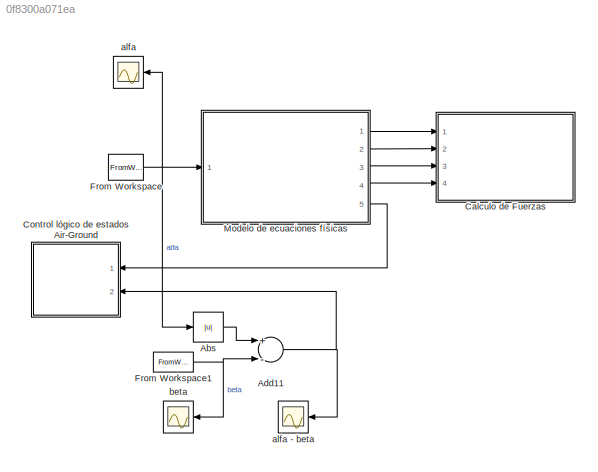
MODEL slx_0f8300a071ea
KIND model
CONFIG AbsTol = auto
CONFIG EnableMultiTasking = off
CONFIG FixedStep = auto
CONFIG MaxStep = auto
CONFIG MinStep = auto
CONFIG RelTol = 1e-1
CONFIG SampleTimeConstraint = Unconstrained
CONFIG Solver = VariableStepAuto
CONFIG SolverName = VariableStepAuto
CONFIG StartTime = 0.0
CONFIG StopTime = ta
BLOCK [Abs] Abs
  SaturateOnIntegerOverflow = off
BLOCK [Sum] Add11
  InputSameDT = off
  Inputs = +-
  OutDataTypeStr = Inherit: Inherit via internal rule
  Ports = [2, 1]
  SaturateOnIntegerOverflow = off
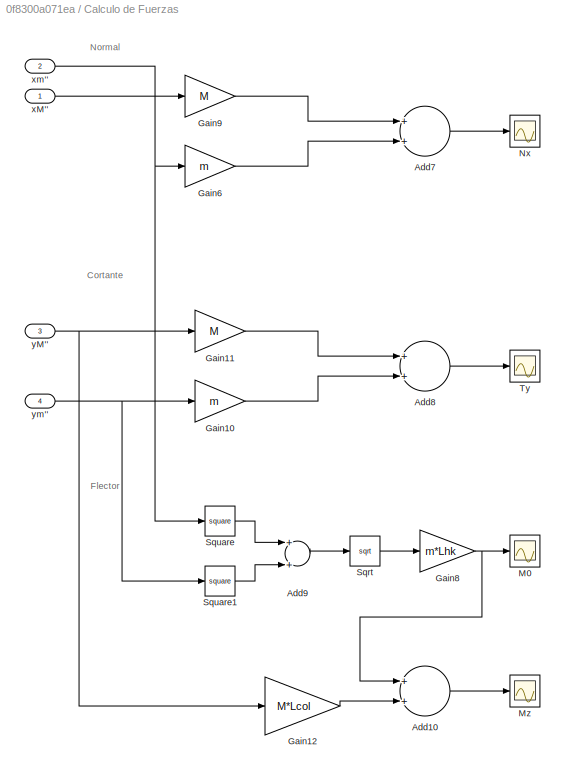
BLOCK [SubSystem] Calculo de Fuerzas
  Ports = [4]
  RequestExecContextInheritance = off
BLOCK [Sum] Calculo de Fuerzas/Add10
  InputSameDT = off
  OutDataTypeStr = Inherit: Inherit via internal rule
  Ports = [2, 1]
  SaturateOnIntegerOverflow = off
BLOCK [Sum] Calculo de Fuerzas/Add7
  InputSameDT = off
  OutDataTypeStr = Inherit: Inherit via internal rule
  Ports = [2, 1]
  SaturateOnIntegerOverflow = off
BLOCK [Sum] Calculo de Fuerzas/Add8
  InputSameDT = off
  OutDataTypeStr = Inherit: Inherit via internal rule
  Ports = [2, 1]
  SaturateOnIntegerOverflow = off
BLOCK [Sum] Calculo de Fuerzas/Add9
  InputSameDT = off
  OutDataTypeStr = Inherit: Inherit via internal rule
  Ports = [2, 1]
  SaturateOnIntegerOverflow = off
BLOCK [Gain] Calculo de Fuerzas/Gain10
  Gain = m
  OutDataTypeStr = Inherit: Inherit via internal rule
  ParamDataTypeStr = Inherit: Inherit via internal rule
  SaturateOnIntegerOverflow = off
BLOCK [Gain] Calculo de Fuerzas/Gain11
  Gain = M
  OutDataTypeStr = Inherit: Inherit via internal rule
  ParamDataTypeStr = Inherit: Inherit via internal rule
  SaturateOnIntegerOverflow = off
BLOCK [Gain] Calculo de Fuerzas/Gain12
  Gain = M*Lcol
  OutDataTypeStr = Inherit: Inherit via internal rule
  ParamDataTypeStr = Inherit: Inherit via internal rule
  SaturateOnIntegerOverflow = off
BLOCK [Gain] Calculo de Fuerzas/Gain6
  Gain = m
  OutDataTypeStr = Inherit: Inherit via internal rule
  ParamDataTypeStr = Inherit: Inherit via internal rule
  SaturateOnIntegerOverflow = off
BLOCK [Gain] Calculo de Fuerzas/Gain8
  Gain = m*Lhk
  OutDataTypeStr = Inherit: Inherit via internal rule
  ParamDataTypeStr = Inherit: Inherit via internal rule
  SaturateOnIntegerOverflow = off
BLOCK [Gain] Calculo de Fuerzas/Gain9
  Gain = M
  OutDataTypeStr = Inherit: Inherit via internal rule
  ParamDataTypeStr = Inherit: Inherit via internal rule
  SaturateOnIntegerOverflow = off
BLOCK [Scope] Calculo de Fuerzas/M0
  Floating = off
  NumInputPorts = 1
  Ports = [1]
  ScopeSpecificationString = Simulink.scopes.TimeScopeBlockCfg('CurrentConfiguration', extmgr.ConfigurationSet(extmgr.Configuration('Core','General UI',true),extmgr.Configuration('Core','Source UI',true),extmgr.Configuration('Sources','WiredSimulink',true,'DataLoggingVariableName','M0','DataLogging',true),extmgr.Configuration('Visuals','Time Domain',true,'SerializedDisplays',{struct('MinYLimReal','7.2404','MaxYLimReal','9.240...<+1456ch>
BLOCK [Scope] Calculo de Fuerzas/Mz
  Floating = off
  NumInputPorts = 1
  Ports = [1]
  ScopeSpecificationString = Simulink.scopes.TimeScopeBlockCfg('CurrentConfiguration', extmgr.ConfigurationSet(extmgr.Configuration('Core','General UI',true),extmgr.Configuration('Core','Source UI',true),extmgr.Configuration('Sources','WiredSimulink',true,'DataLoggingVariableName','Mz','DataLogging',true),extmgr.Configuration('Visuals','Time Domain',true,'SerializedDisplays',{struct('MinYLimReal','-104.7646','MaxYLimReal','-8...<+1475ch>
BLOCK [Scope] Calculo de Fuerzas/Nx
  Floating = off
  NumInputPorts = 1
  Ports = [1]
  ScopeSpecificationString = Simulink.scopes.TimeScopeBlockCfg('CurrentConfiguration', extmgr.ConfigurationSet(extmgr.Configuration('Core','General UI',true),extmgr.Configuration('Core','Source UI',true),extmgr.Configuration('Sources','WiredSimulink',true,'DataLoggingVariableName','Nx','DataLogging',true),extmgr.Configuration('Visuals','Time Domain',true,'SerializedDisplays',{struct('MinYLimReal','-2.0288','MaxYLimReal','2.87...<+1903ch>
BLOCK [Sqrt] Calculo de Fuerzas/Sqrt
BLOCK [Math] Calculo de Fuerzas/Square
  Operator = square
  Ports = [1, 1]
BLOCK [Math] Calculo de Fuerzas/Square1
  Operator = square
  Ports = [1, 1]
BLOCK [Scope] Calculo de Fuerzas/Ty
  Floating = off
  NumInputPorts = 1
  Ports = [1]
  ScopeSpecificationString = Simulink.scopes.TimeScopeBlockCfg('CurrentConfiguration', extmgr.ConfigurationSet(extmgr.Configuration('Core','General UI',true),extmgr.Configuration('Core','Source UI',true),extmgr.Configuration('Sources','WiredSimulink',true,'DataLoggingVariableName','Ty','DataLogging',true),extmgr.Configuration('Visuals','Time Domain',true,'SerializedDisplays',{struct('MinYLimReal','-2.0288','MaxYLimReal','2.87...<+1903ch>
BLOCK [Inport] Calculo de Fuerzas/xM''
  IconDisplay = Port number
BLOCK [Inport] Calculo de Fuerzas/xm''
  IconDisplay = Port number
  Port = 2
BLOCK [Inport] Calculo de Fuerzas/yM''
  IconDisplay = Port number
  Port = 3
BLOCK [Inport] Calculo de Fuerzas/ym''
  IconDisplay = Port number
  Port = 4
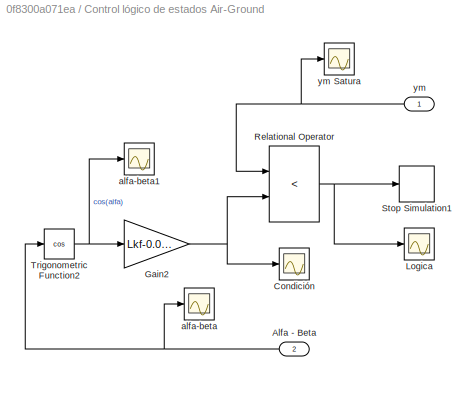
BLOCK [SubSystem] Control lógico de estados Air-Ground
  Ports = [2]
  RequestExecContextInheritance = off
BLOCK [Inport] Control lógico de estados Air-Ground/Alfa - Beta
  IconDisplay = Port number
  Port = 2
BLOCK [Scope] Control lógico de estados Air-Ground/Condición
  Floating = off
  NumInputPorts = 1
  Ports = [1]
  ScopeSpecificationString = Simulink.scopes.TimeScopeBlockCfg('CurrentConfiguration', extmgr.ConfigurationSet(extmgr.Configuration('Core','General UI',true),extmgr.Configuration('Core','Source UI',true),extmgr.Configuration('Sources','WiredSimulink',true,'DataLoggingVariableName','condicion','DataLogging',true),extmgr.Configuration('Visuals','Time Domain',true,'SerializedDisplays',{struct('MinYLimReal','-0.03235','MaxYLimRea...<+1477ch>
BLOCK [Gain] Control lógico de estados Air-Ground/Gain2
  Gain = Lkf-0.015
  OutDataTypeStr = Inherit: Inherit via internal rule
  ParamDataTypeStr = Inherit: Inherit via internal rule
  SaturateOnIntegerOverflow = off
BLOCK [Scope] Control lógico de estados Air-Ground/Logica
  Floating = off
  NumInputPorts = 1
  Ports = [1]
  ScopeSpecificationString = Simulink.scopes.TimeScopeBlockCfg('CurrentConfiguration', extmgr.ConfigurationSet(extmgr.Configuration('Core','General UI',true),extmgr.Configuration('Core','Source UI',true),extmgr.Configuration('Sources','WiredSimulink',true,'DataLoggingVariableName','ScopeData1','DataLoggingSaveFormat','Array'),extmgr.Configuration('Visuals','Time Domain',true,'SerializedDisplays',{struct('MinYLimReal','-0.125'...<+1425ch>
BLOCK [RelationalOperator] Control lógico de estados Air-Ground/Relational Operator
  InputSameDT = off
  Operator = <
  OutDataTypeStr = boolean
  Ports = [2, 1]
  RndMeth = Simplest
BLOCK [Stop] Control lógico de estados Air-Ground/Stop Simulation1
BLOCK [Trigonometry] Control lógico de estados Air-Ground/Trigonometric Function2
  Operator = cos
  Ports = [1, 1]
BLOCK [Scope] Control lógico de estados Air-Ground/alfa-beta
  Floating = off
  NumInputPorts = 1
  Ports = [1]
  ScopeSpecificationString = Simulink.scopes.TimeScopeBlockCfg('CurrentConfiguration', extmgr.ConfigurationSet(extmgr.Configuration('Core','General UI',true),extmgr.Configuration('Core','Source UI',true),extmgr.Configuration('Sources','WiredSimulink',true,'DataLoggingVariableName','ScopeData2','DataLoggingSaveFormat','Array'),extmgr.Configuration('Visuals','Time Domain',true,'SerializedDisplays',{struct('MinYLimReal','-1.6956...<+1500ch>
BLOCK [Scope] Control lógico de estados Air-Ground/alfa-beta1
  Floating = off
  NumInputPorts = 1
  Ports = [1]
  ScopeSpecificationString = Simulink.scopes.TimeScopeBlockCfg('CurrentConfiguration', extmgr.ConfigurationSet(extmgr.Configuration('Core','General UI',true),extmgr.Configuration('Core','Source UI',true),extmgr.Configuration('Sources','WiredSimulink',true,'DataLoggingVariableName','ScopeData4','DataLoggingSaveFormat','Array'),extmgr.Configuration('Visuals','Time Domain',true,'SerializedDisplays',{struct('MinYLimReal','-0.1159...<+1486ch>
BLOCK [Inport] Control lógico de estados Air-Ground/ym
  IconDisplay = Port number
BLOCK [Scope] Control lógico de estados Air-Ground/ym Satura
  Floating = off
  NumInputPorts = 1
  Ports = [1]
  ScopeSpecificationString = Simulink.scopes.TimeScopeBlockCfg('CurrentConfiguration', extmgr.ConfigurationSet(extmgr.Configuration('Core','General UI',true),extmgr.Configuration('Core','Source UI',true),extmgr.Configuration('Sources','WiredSimulink',true,'DataLoggingVariableName','ymSat','DataLogging',true),extmgr.Configuration('Visuals','Time Domain',true,'SerializedDisplays',{struct('MinYLimReal','-0.04274','MaxYLimReal','...<+1470ch>
BLOCK [FromWorkspace] From Workspace
  SampleTime = 0
  VariableName = alfaAir_t
  ZeroCross = on
BLOCK [FromWorkspace] From Workspace1
  SampleTime = 0
  VariableName = betaAir_t
  ZeroCross = on
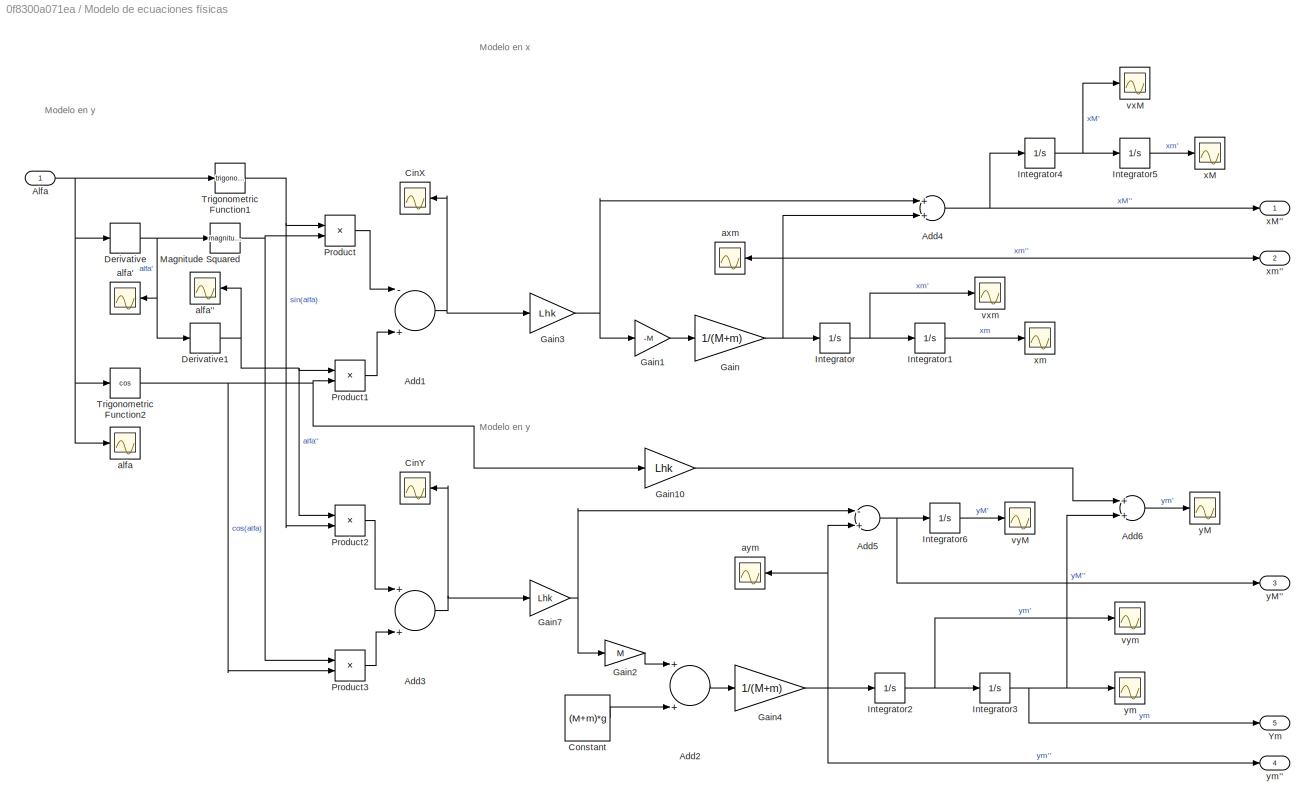
BLOCK [SubSystem] Modelo de ecuaciones físicas
  Ports = [1, 5]
  RequestExecContextInheritance = off
BLOCK [Sum] Modelo de ecuaciones físicas/Add1
  InputSameDT = off
  Inputs = -+
  OutDataTypeStr = Inherit: Inherit via internal rule
  Ports = [2, 1]
  SaturateOnIntegerOverflow = off
BLOCK [Sum] Modelo de ecuaciones físicas/Add2
  InputSameDT = off
  OutDataTypeStr = Inherit: Inherit via internal rule
  Ports = [2, 1]
  SaturateOnIntegerOverflow = off
BLOCK [Sum] Modelo de ecuaciones físicas/Add3
  InputSameDT = off
  OutDataTypeStr = Inherit: Inherit via internal rule
  Ports = [2, 1]
  SaturateOnIntegerOverflow = off
BLOCK [Sum] Modelo de ecuaciones físicas/Add4
  InputSameDT = off
  OutDataTypeStr = Inherit: Inherit via internal rule
  Ports = [2, 1]
  SaturateOnIntegerOverflow = off
BLOCK [Sum] Modelo de ecuaciones físicas/Add5
  InputSameDT = off
  Inputs = -+
  OutDataTypeStr = Inherit: Inherit via internal rule
  Ports = [2, 1]
  SaturateOnIntegerOverflow = off
BLOCK [Sum] Modelo de ecuaciones físicas/Add6
  InputSameDT = off
  OutDataTypeStr = Inherit: Inherit via internal rule
  Ports = [2, 1]
  SaturateOnIntegerOverflow = off
BLOCK [Inport] Modelo de ecuaciones físicas/Alfa
  IconDisplay = Port number
BLOCK [Scope] Modelo de ecuaciones físicas/CinX
  Floating = off
  NumInputPorts = 1
  Ports = [1]
  ScopeSpecificationString = Simulink.scopes.TimeScopeBlockCfg('CurrentConfiguration', extmgr.ConfigurationSet(extmgr.Configuration('Core','General UI',true),extmgr.Configuration('Core','Source UI',true),extmgr.Configuration('Sources','WiredSimulink',true,'DataLoggingVariableName','ScopeData5'),extmgr.Configuration('Visuals','Time Domain',true,'SerializedDisplays',{struct('MinYLimReal','-23602371756018.24609','MaxYLimReal','2...<+1463ch>
BLOCK [Scope] Modelo de ecuaciones físicas/CinY
  Floating = off
  NumInputPorts = 1
  Ports = [1]
  ScopeSpecificationString = Simulink.scopes.TimeScopeBlockCfg('CurrentConfiguration', extmgr.ConfigurationSet(extmgr.Configuration('Core','General UI',true),extmgr.Configuration('Core','Source UI',true),extmgr.Configuration('Sources','WiredSimulink',true,'DataLoggingVariableName','ScopeData4'),extmgr.Configuration('Visuals','Time Domain',true,'SerializedDisplays',{struct('MinYLimReal','-2102493.441','MaxYLimReal','233709.274...<+1399ch>
BLOCK [Constant] Modelo de ecuaciones físicas/Constant
  Value = (M+m)*g
BLOCK [Derivative] Modelo de ecuaciones físicas/Derivative
  CoefficientInTFapproximation = 1000
BLOCK [Derivative] Modelo de ecuaciones físicas/Derivative1
  CoefficientInTFapproximation = 1000
BLOCK [Gain] Modelo de ecuaciones físicas/Gain
  Gain = 1/(M+m)
  OutDataTypeStr = Inherit: Inherit via internal rule
  ParamDataTypeStr = Inherit: Inherit via internal rule
  SaturateOnIntegerOverflow = off
BLOCK [Gain] Modelo de ecuaciones físicas/Gain1
  Gain = -M
  OutDataTypeStr = Inherit: Inherit via internal rule
  ParamDataTypeStr = Inherit: Inherit via internal rule
  SaturateOnIntegerOverflow = off
BLOCK [Gain] Modelo de ecuaciones físicas/Gain10
  Gain = Lhk
  OutDataTypeStr = Inherit: Inherit via internal rule
  ParamDataTypeStr = Inherit: Inherit via internal rule
  SaturateOnIntegerOverflow = off
BLOCK [Gain] Modelo de ecuaciones físicas/Gain2
  Gain = M
  OutDataTypeStr = Inherit: Inherit via internal rule
  ParamDataTypeStr = Inherit: Inherit via internal rule
  SaturateOnIntegerOverflow = off
BLOCK [Gain] Modelo de ecuaciones físicas/Gain3
  Gain = Lhk
  OutDataTypeStr = Inherit: Inherit via internal rule
  ParamDataTypeStr = Inherit: Inherit via internal rule
  SaturateOnIntegerOverflow = off
BLOCK [Gain] Modelo de ecuaciones físicas/Gain4
  Gain = 1/(M+m)
  OutDataTypeStr = Inherit: Inherit via internal rule
  ParamDataTypeStr = Inherit: Inherit via internal rule
  SaturateOnIntegerOverflow = off
BLOCK [Gain] Modelo de ecuaciones físicas/Gain7
  Gain = Lhk
  OutDataTypeStr = Inherit: Inherit via internal rule
  ParamDataTypeStr = Inherit: Inherit via internal rule
  SaturateOnIntegerOverflow = off
BLOCK [Integrator] Modelo de ecuaciones físicas/Integrator
  InitialCondition = vxfinal
  Ports = [1, 1]
BLOCK [Integrator] Modelo de ecuaciones físicas/Integrator1
  InitialCondition = xfinal
  Ports = [1, 1]
BLOCK [Integrator] Modelo de ecuaciones físicas/Integrator2
  InitialCondition = vyfinal
  Ports = [1, 1]
BLOCK [Integrator] Modelo de ecuaciones físicas/Integrator3
  InitialCondition = yfinal
  Ports = [1, 1]
BLOCK [Integrator] Modelo de ecuaciones físicas/Integrator4
  InitialCondition = vxMfinal
  Ports = [1, 1]
BLOCK [Integrator] Modelo de ecuaciones físicas/Integrator5
  InitialCondition = xMfinal
  Ports = [1, 1]
BLOCK [Integrator] Modelo de ecuaciones físicas/Integrator6
  InitialCondition = vyMfinal
  Ports = [1, 1]
BLOCK [Math] Modelo de ecuaciones físicas/Magnitude Squared
  Operator = magnitude^2
  Ports = [1, 1]
BLOCK [Product] Modelo de ecuaciones físicas/Product
  InputSameDT = off
  OutDataTypeStr = Inherit: Inherit via internal rule
  Ports = [2, 1]
  RndMeth = Floor
  SaturateOnIntegerOverflow = off
BLOCK [Product] Modelo de ecuaciones físicas/Product1
  InputSameDT = off
  OutDataTypeStr = Inherit: Inherit via internal rule
  Ports = [2, 1]
  RndMeth = Floor
  SaturateOnIntegerOverflow = off
BLOCK [Product] Modelo de ecuaciones físicas/Product2
  InputSameDT = off
  OutDataTypeStr = Inherit: Inherit via internal rule
  Ports = [2, 1]
  RndMeth = Floor
  SaturateOnIntegerOverflow = off
BLOCK [Product] Modelo de ecuaciones físicas/Product3
  InputSameDT = off
  OutDataTypeStr = Inherit: Inherit via internal rule
  Ports = [2, 1]
  RndMeth = Floor
  SaturateOnIntegerOverflow = off
BLOCK [Trigonometry] Modelo de ecuaciones físicas/Trigonometric Function1
  Ports = [1, 1]
BLOCK [Trigonometry] Modelo de ecuaciones físicas/Trigonometric Function2
  Operator = cos
  Ports = [1, 1]
BLOCK [Outport] Modelo de ecuaciones físicas/Ym
  IconDisplay = Port number
  Port = 5
BLOCK [Scope] Modelo de ecuaciones físicas/alfa
  Floating = off
  NumInputPorts = 1
  Ports = [1]
  ScopeSpecificationString = Simulink.scopes.TimeScopeBlockCfg('CurrentConfiguration', extmgr.ConfigurationSet(extmgr.Configuration('Core','General UI',true),extmgr.Configuration('Core','Source UI',true),extmgr.Configuration('Sources','WiredSimulink',true,'DataLoggingVariableName','ScopeData1'),extmgr.Configuration('Visuals','Time Domain',true,'SerializedDisplays',{struct('MinYLimReal','-1.18796','MaxYLimReal','1.56879','YLab...<+2085ch>
BLOCK [Scope] Modelo de ecuaciones físicas/alfa'
  Floating = off
  NumInputPorts = 1
  Ports = [1]
  ScopeSpecificationString = Simulink.scopes.TimeScopeBlockCfg('CurrentConfiguration', extmgr.ConfigurationSet(extmgr.Configuration('Core','General UI',true),extmgr.Configuration('Core','Source UI',true),extmgr.Configuration('Sources','WiredSimulink',true,'DataLoggingVariableName','ScopeData2'),extmgr.Configuration('Visuals','Time Domain',true,'SerializedDisplays',{struct('MinYLimReal','-15.13267','MaxYLimReal','13.2348','YLa...<+1396ch>
BLOCK [Scope] Modelo de ecuaciones físicas/alfa''
  Floating = off
  NumInputPorts = 1
  Ports = [1]
  ScopeSpecificationString = Simulink.scopes.TimeScopeBlockCfg('CurrentConfiguration', extmgr.ConfigurationSet(extmgr.Configuration('Core','General UI',true),extmgr.Configuration('Core','Source UI',true),extmgr.Configuration('Sources','WiredSimulink',true,'DataLoggingVariableName','ScopeData3'),extmgr.Configuration('Visuals','Time Domain',true,'SerializedDisplays',{struct('MinYLimReal','-24504794364044415216146234474496.00000...<+1632ch>
BLOCK [Scope] Modelo de ecuaciones físicas/axm
  Floating = off
  NumInputPorts = 1
  Ports = [1]
  ScopeSpecificationString = Simulink.scopes.TimeScopeBlockCfg('CurrentConfiguration', extmgr.ConfigurationSet(extmgr.Configuration('Core','General UI',true),extmgr.Configuration('Core','Source UI',true),extmgr.Configuration('Sources','WiredSimulink',true,'DataLoggingVariableName','ScopeData1'),extmgr.Configuration('Visuals','Time Domain',true,'SerializedDisplays',{struct('MinYLimReal','-1.00000','MaxYLimReal','1.00000','YLab...<+2200ch>
BLOCK [Scope] Modelo de ecuaciones físicas/aym
  Floating = off
  NumInputPorts = 1
  Ports = [1]
  ScopeSpecificationString = Simulink.scopes.TimeScopeBlockCfg('CurrentConfiguration', extmgr.ConfigurationSet(extmgr.Configuration('Core','General UI',true),extmgr.Configuration('Core','Source UI',true),extmgr.Configuration('Sources','WiredSimulink',true,'DataLoggingVariableName','ScopeData1'),extmgr.Configuration('Visuals','Time Domain',true,'SerializedDisplays',{struct('MinYLimReal','-10.81','MaxYLimReal','-8.81','YLabelRe...<+2188ch>
BLOCK [Scope] Modelo de ecuaciones físicas/vxM
  Floating = off
  NumInputPorts = 1
  Ports = [1]
  ScopeSpecificationString = Simulink.scopes.TimeScopeBlockCfg('CurrentConfiguration', extmgr.ConfigurationSet(extmgr.Configuration('Core','General UI',true),extmgr.Configuration('Core','Source UI',true),extmgr.Configuration('Sources','WiredSimulink',true,'DataLogging',true,'DataLoggingVariableName','vxMair'),extmgr.Configuration('Visuals','Time Domain',true,'SerializedDisplays',{struct('MinYLimReal','-5.64476','MaxYLimReal',...<+1380ch>
BLOCK [Scope] Modelo de ecuaciones físicas/vxm
  Floating = off
  NumInputPorts = 1
  Ports = [1]
  ScopeSpecificationString = Simulink.scopes.TimeScopeBlockCfg('CurrentConfiguration', extmgr.ConfigurationSet(extmgr.Configuration('Core','General UI',true),extmgr.Configuration('Core','Source UI',true),extmgr.Configuration('Sources','WiredSimulink',true,'DataLoggingVariableName','vxair','DataLogging',true),extmgr.Configuration('Visuals','Time Domain',true,'SerializedDisplays',{struct('MinYLimReal','1.43776','MaxYLimReal','7...<+1375ch>
BLOCK [Scope] Modelo de ecuaciones físicas/vyM
  Floating = off
  NumInputPorts = 1
  Ports = [1]
  ScopeSpecificationString = Simulink.scopes.TimeScopeBlockCfg('CurrentConfiguration', extmgr.ConfigurationSet(extmgr.Configuration('Core','General UI',true),extmgr.Configuration('Core','Source UI',true),extmgr.Configuration('Sources','WiredSimulink',true,'DataLogging',true,'DataLoggingVariableName','vyMair'),extmgr.Configuration('Visuals','Time Domain',true,'SerializedDisplays',{struct('MinYLimReal','-1.00000','MaxYLimReal',...<+1374ch>
BLOCK [Scope] Modelo de ecuaciones físicas/vym
  Floating = off
  NumInputPorts = 1
  Ports = [1]
  ScopeSpecificationString = Simulink.scopes.TimeScopeBlockCfg('CurrentConfiguration', extmgr.ConfigurationSet(extmgr.Configuration('Core','General UI',true),extmgr.Configuration('Core','Source UI',true),extmgr.Configuration('Sources','WiredSimulink',true,'DataLoggingVariableName','vyair','DataLogging',true),extmgr.Configuration('Visuals','Time Domain',true,'SerializedDisplays',{struct('MinYLimReal','-2.0288','MaxYLimReal','2...<+1421ch>
BLOCK [Scope] Modelo de ecuaciones físicas/xM
  Floating = off
  NumInputPorts = 1
  Ports = [1]
  ScopeSpecificationString = Simulink.scopes.TimeScopeBlockCfg('CurrentConfiguration', extmgr.ConfigurationSet(extmgr.Configuration('Core','General UI',true),extmgr.Configuration('Core','Source UI',true),extmgr.Configuration('Sources','WiredSimulink',true,'DataLogging',true,'DataLoggingVariableName','xMair'),extmgr.Configuration('Visuals','Time Domain',true,'SerializedDisplays',{struct('MinYLimReal','-1.00000','MaxYLimReal','...<+1373ch>
BLOCK [Outport] Modelo de ecuaciones físicas/xM''
  IconDisplay = Port number
BLOCK [Scope] Modelo de ecuaciones físicas/xm
  Floating = off
  NumInputPorts = 1
  Ports = [1]
  ScopeSpecificationString = Simulink.scopes.TimeScopeBlockCfg('CurrentConfiguration', extmgr.ConfigurationSet(extmgr.Configuration('Core','General UI',true),extmgr.Configuration('Core','Source UI',true),extmgr.Configuration('Sources','WiredSimulink',true,'DataLogging',true,'DataLoggingVariableName','xair'),extmgr.Configuration('Visuals','Time Domain',true,'SerializedDisplays',{struct('MinYLimReal','-1.00000','MaxYLimReal','1...<+1372ch>
BLOCK [Outport] Modelo de ecuaciones físicas/xm''
  IconDisplay = Port number
  Port = 2
BLOCK [Scope] Modelo de ecuaciones físicas/yM
  Floating = off
  NumInputPorts = 1
  Ports = [1]
  ScopeSpecificationString = Simulink.scopes.TimeScopeBlockCfg('CurrentConfiguration', extmgr.ConfigurationSet(extmgr.Configuration('Core','General UI',true),extmgr.Configuration('Core','Source UI',true),extmgr.Configuration('Sources','WiredSimulink',true,'DataLogging',true,'DataLoggingVariableName','yMair'),extmgr.Configuration('Visuals','Time Domain',true,'SerializedDisplays',{struct('MinYLimReal','0.73865','MaxYLimReal','0...<+2100ch>
BLOCK [Outport] Modelo de ecuaciones físicas/yM''
  IconDisplay = Port number
  Port = 3
BLOCK [Scope] Modelo de ecuaciones físicas/ym
  Floating = off
  NumInputPorts = 1
  Ports = [1]
  ScopeSpecificationString = Simulink.scopes.TimeScopeBlockCfg('CurrentConfiguration', extmgr.ConfigurationSet(extmgr.Configuration('Core','General UI',true),extmgr.Configuration('Core','Source UI',true),extmgr.Configuration('Sources','WiredSimulink',true,'DataLogging',true,'DataLoggingVariableName','yair'),extmgr.Configuration('Visuals','Time Domain',true,'SerializedDisplays',{struct('MinYLimReal','0.13543','MaxYLimReal','0....<+1786ch>
BLOCK [Outport] Modelo de ecuaciones físicas/ym''
  IconDisplay = Port number
  Port = 4
BLOCK [Scope] alfa
  Floating = off
  NumInputPorts = 1
  Ports = [1]
  ScopeSpecificationString = Simulink.scopes.TimeScopeBlockCfg('CurrentConfiguration', extmgr.ConfigurationSet(extmgr.Configuration('Core','General UI',true),extmgr.Configuration('Core','Source UI',true),extmgr.Configuration('Sources','WiredSimulink',true,'DataLoggingVariableName','alfaAirReal','DataLogging',true),extmgr.Configuration('Visuals','Time Domain',true,'SerializedDisplays',{struct('MinYLimReal','-0.74451','MaxYLimR...<+1410ch>
BLOCK [Scope] alfa - beta
  Floating = off
  NumInputPorts = 1
  Ports = [1]
  ScopeSpecificationString = Simulink.scopes.TimeScopeBlockCfg('CurrentConfiguration', extmgr.ConfigurationSet(extmgr.Configuration('Core','General UI',true),extmgr.Configuration('Core','Source UI',true),extmgr.Configuration('Sources','WiredSimulink',true,'DataLoggingVariableName','ScopeData2'),extmgr.Configuration('Visuals','Time Domain',true,'SerializedDisplays',{struct('MinYLimReal','0.37825','MaxYLimReal','0.57825','YLabe...<+1387ch>
BLOCK [Scope] beta
  Floating = off
  NumInputPorts = 1
  Ports = [1]
  ScopeSpecificationString = Simulink.scopes.TimeScopeBlockCfg('CurrentConfiguration', extmgr.ConfigurationSet(extmgr.Configuration('Core','General UI',true),extmgr.Configuration('Core','Source UI',true),extmgr.Configuration('Sources','WiredSimulink',true,'DataLoggingVariableName','betaAirReal','DataLogging',true),extmgr.Configuration('Visuals','Time Domain',true,'SerializedDisplays',{struct('MinYLimReal','0.06626','MaxYLimRe...<+1381ch>
ANNOTATION Calculo de Fuerzas: Cortante
ANNOTATION Calculo de Fuerzas: Flector
ANNOTATION Calculo de Fuerzas: Normal
ANNOTATION Modelo de ecuaciones físicas: Modelo en x
ANNOTATION Modelo de ecuaciones físicas: Modelo en y
LINE Abs:1 -> Add11:1
NET Add11:1 -> Control lógico de estados Air-Ground:2, alfa - beta:1
LINE Calculo de Fuerzas/Add10:1 -> Calculo de Fuerzas/Mz:1
LINE Calculo de Fuerzas/Add7:1 -> Calculo de Fuerzas/Nx:1
LINE Calculo de Fuerzas/Add8:1 -> Calculo de Fuerzas/Ty:1
LINE Calculo de Fuerzas/Add9:1 -> Calculo de Fuerzas/Sqrt:1
LINE Calculo de Fuerzas/Gain10:1 -> Calculo de Fuerzas/Add8:2
LINE Calculo de Fuerzas/Gain11:1 -> Calculo de Fuerzas/Add8:1
LINE Calculo de Fuerzas/Gain12:1 -> Calculo de Fuerzas/Add10:2
LINE Calculo de Fuerzas/Gain6:1 -> Calculo de Fuerzas/Add7:2
NET Calculo de Fuerzas/Gain8:1 -> Calculo de Fuerzas/Add10:1, Calculo de Fuerzas/M0:1
LINE Calculo de Fuerzas/Gain9:1 -> Calculo de Fuerzas/Add7:1
LINE Calculo de Fuerzas/Sqrt:1 -> Calculo de Fuerzas/Gain8:1
LINE Calculo de Fuerzas/Square1:1 -> Calculo de Fuerzas/Add9:2
LINE Calculo de Fuerzas/Square:1 -> Calculo de Fuerzas/Add9:1
LINE Calculo de Fuerzas/xM'':1 -> Calculo de Fuerzas/Gain9:1
NET Calculo de Fuerzas/xm'':1 -> Calculo de Fuerzas/Gain6:1, Calculo de Fuerzas/Square:1
NET Calculo de Fuerzas/yM'':1 -> Calculo de Fuerzas/Gain11:1, Calculo de Fuerzas/Gain12:1
NET Calculo de Fuerzas/ym'':1 -> Calculo de Fuerzas/Gain10:1, Calculo de Fuerzas/Square1:1
NET Control lógico de estados Air-Ground/Alfa - Beta:1 -> Control lógico de estados Air-Ground/Trigonometric Function2:1, Control lógico de estados Air-Ground/alfa-beta:1
NET Control lógico de estados Air-Ground/Gain2:1 -> Control lógico de estados Air-Ground/Condición:1, Control lógico de estados Air-Ground/Relational Operator:2
NET Control lógico de estados Air-Ground/Relational Operator:1 -> Control lógico de estados Air-Ground/Logica:1, Control lógico de estados Air-Ground/Stop Simulation1:1
NET Control lógico de estados Air-Ground/Trigonometric Function2:1 -> Control lógico de estados Air-Ground/Gain2:1, Control lógico de estados Air-Ground/alfa-beta1:1
NET Control lógico de estados Air-Ground/ym:1 -> Control lógico de estados Air-Ground/Relational Operator:1, Control lógico de estados Air-Ground/ym Satura:1
NET From Workspace1:1 -> Add11:2, beta:1
NET From Workspace:1 -> Abs:1, Modelo de ecuaciones físicas:1, alfa:1
NET Modelo de ecuaciones físicas/Add1:1 -> Modelo de ecuaciones físicas/CinX:1, Modelo de ecuaciones físicas/Gain3:1
LINE Modelo de ecuaciones físicas/Add2:1 -> Modelo de ecuaciones físicas/Gain4:1
NET Modelo de ecuaciones físicas/Add3:1 -> Modelo de ecuaciones físicas/CinY:1, Modelo de ecuaciones físicas/Gain7:1
NET Modelo de ecuaciones físicas/Add4:1 -> Modelo de ecuaciones físicas/Integrator4:1, Modelo de ecuaciones físicas/xM'':1
NET Modelo de ecuaciones físicas/Add5:1 -> Modelo de ecuaciones físicas/Integrator6:1, Modelo de ecuaciones físicas/yM'':1
LINE Modelo de ecuaciones físicas/Add6:1 -> Modelo de ecuaciones físicas/yM:1
NET Modelo de ecuaciones físicas/Alfa:1 -> Modelo de ecuaciones físicas/Derivative:1, Modelo de ecuaciones físicas/Trigonometric Function1:1, Modelo de ecuaciones físicas/Trigonometric Function2:1, Modelo de ecuaciones físicas/alfa:1
LINE Modelo de ecuaciones físicas/Constant:1 -> Modelo de ecuaciones físicas/Add2:2
NET Modelo de ecuaciones físicas/Derivative1:1 -> Modelo de ecuaciones físicas/Product1:1, Modelo de ecuaciones físicas/Product2:1, Modelo de ecuaciones físicas/alfa'':1
NET Modelo de ecuaciones físicas/Derivative:1 -> Modelo de ecuaciones físicas/Derivative1:1, Modelo de ecuaciones físicas/Magnitude Squared:1, Modelo de ecuaciones físicas/alfa':1
LINE Modelo de ecuaciones físicas/Gain10:1 -> Modelo de ecuaciones físicas/Add6:1
LINE Modelo de ecuaciones físicas/Gain1:1 -> Modelo de ecuaciones físicas/Gain:1
LINE Modelo de ecuaciones físicas/Gain2:1 -> Modelo de ecuaciones físicas/Add2:1
NET Modelo de ecuaciones físicas/Gain3:1 -> Modelo de ecuaciones físicas/Add4:1, Modelo de ecuaciones físicas/Gain1:1
NET Modelo de ecuaciones físicas/Gain4:1 -> Modelo de ecuaciones físicas/Add5:2, Modelo de ecuaciones físicas/Integrator2:1, Modelo de ecuaciones físicas/aym:1, Modelo de ecuaciones físicas/ym'':1
NET Modelo de ecuaciones físicas/Gain7:1 -> Modelo de ecuaciones físicas/Add5:1, Modelo de ecuaciones físicas/Gain2:1
NET Modelo de ecuaciones físicas/Gain:1 -> Modelo de ecuaciones físicas/Add4:2, Modelo de ecuaciones físicas/Integrator:1, Modelo de ecuaciones físicas/axm:1, Modelo de ecuaciones físicas/xm'':1
LINE Modelo de ecuaciones físicas/Integrator1:1 -> Modelo de ecuaciones físicas/xm:1
NET Modelo de ecuaciones físicas/Integrator2:1 -> Modelo de ecuaciones físicas/Integrator3:1, Modelo de ecuaciones físicas/vym:1
NET Modelo de ecuaciones físicas/Integrator3:1 -> Modelo de ecuaciones físicas/Add6:2, Modelo de ecuaciones físicas/Ym:1, Modelo de ecuaciones físicas/ym:1
NET Modelo de ecuaciones físicas/Integrator4:1 -> Modelo de ecuaciones físicas/Integrator5:1, Modelo de ecuaciones físicas/vxM:1
LINE Modelo de ecuaciones físicas/Integrator5:1 -> Modelo de ecuaciones físicas/xM:1
LINE Modelo de ecuaciones físicas/Integrator6:1 -> Modelo de ecuaciones físicas/vyM:1
NET Modelo de ecuaciones físicas/Integrator:1 -> Modelo de ecuaciones físicas/Integrator1:1, Modelo de ecuaciones físicas/vxm:1
NET Modelo de ecuaciones físicas/Magnitude Squared:1 -> Modelo de ecuaciones físicas/Product3:1, Modelo de ecuaciones físicas/Product:2
LINE Modelo de ecuaciones físicas/Product1:1 -> Modelo de ecuaciones físicas/Add1:2
LINE Modelo de ecuaciones físicas/Product2:1 -> Modelo de ecuaciones físicas/Add3:1
LINE Modelo de ecuaciones físicas/Product3:1 -> Modelo de ecuaciones físicas/Add3:2
LINE Modelo de ecuaciones físicas/Product:1 -> Modelo de ecuaciones físicas/Add1:1
NET Modelo de ecuaciones físicas/Trigonometric Function1:1 -> Modelo de ecuaciones físicas/Product2:2, Modelo de ecuaciones físicas/Product:1
NET Modelo de ecuaciones físicas/Trigonometric Function2:1 -> Modelo de ecuaciones físicas/Gain10:1, Modelo de ecuaciones físicas/Product1:2, Modelo de ecuaciones físicas/Product3:2
LINE Modelo de ecuaciones físicas:1 -> Calculo de Fuerzas:1
LINE Modelo de ecuaciones físicas:2 -> Calculo de Fuerzas:2
LINE Modelo de ecuaciones físicas:3 -> Calculo de Fuerzas:3
LINE Modelo de ecuaciones físicas:4 -> Calculo de Fuerzas:4
LINE Modelo de ecuaciones físicas:5 -> Control lógico de estados Air-Ground:1
note: NET lines group one-source signal fan-out (src -> all destinations, sorted); 1:1 wires keep LINE
